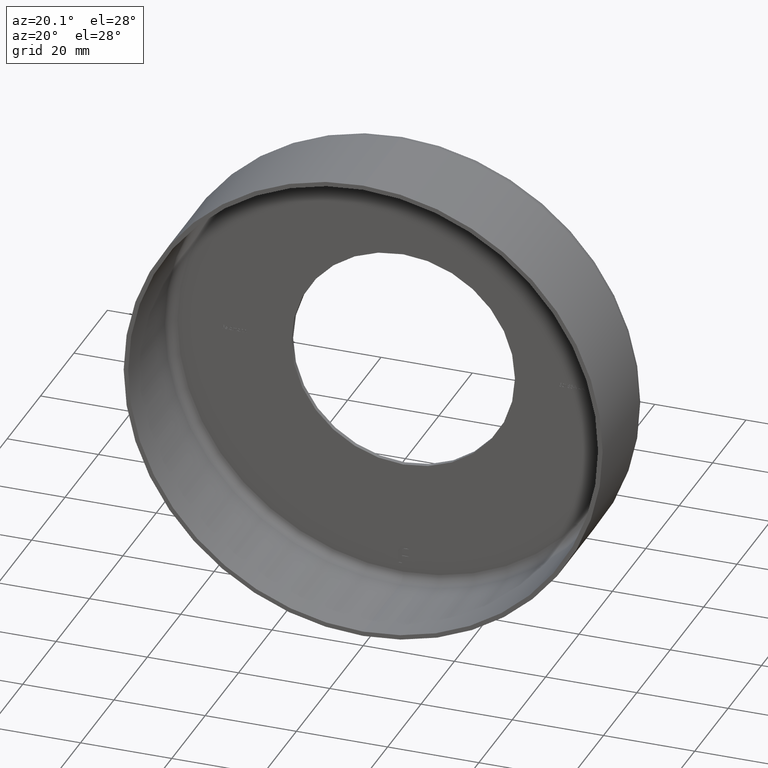
[diagram: clean part render]
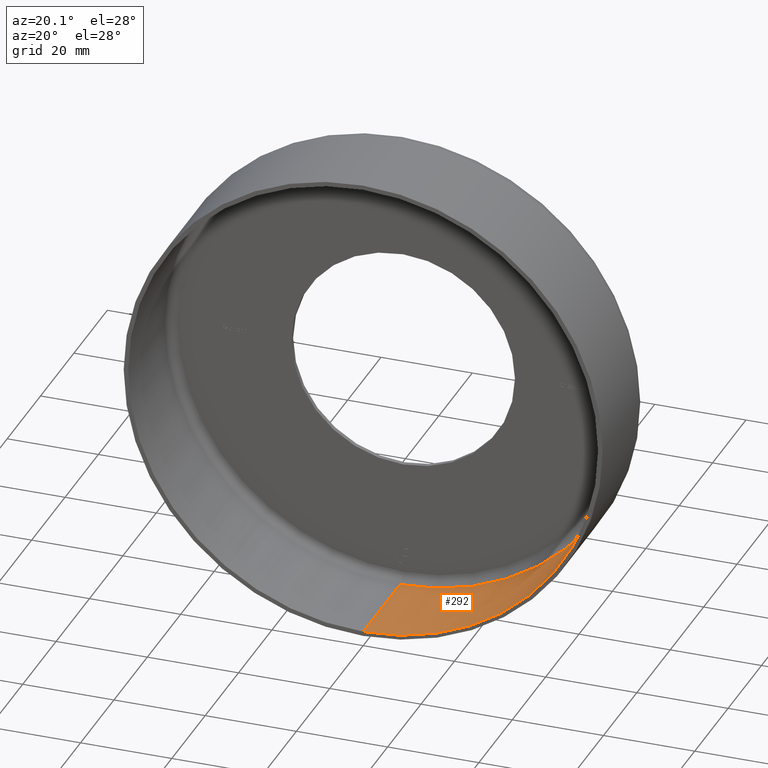
[diagram: same view with one face highlighted and labeled with its STEP entity id]
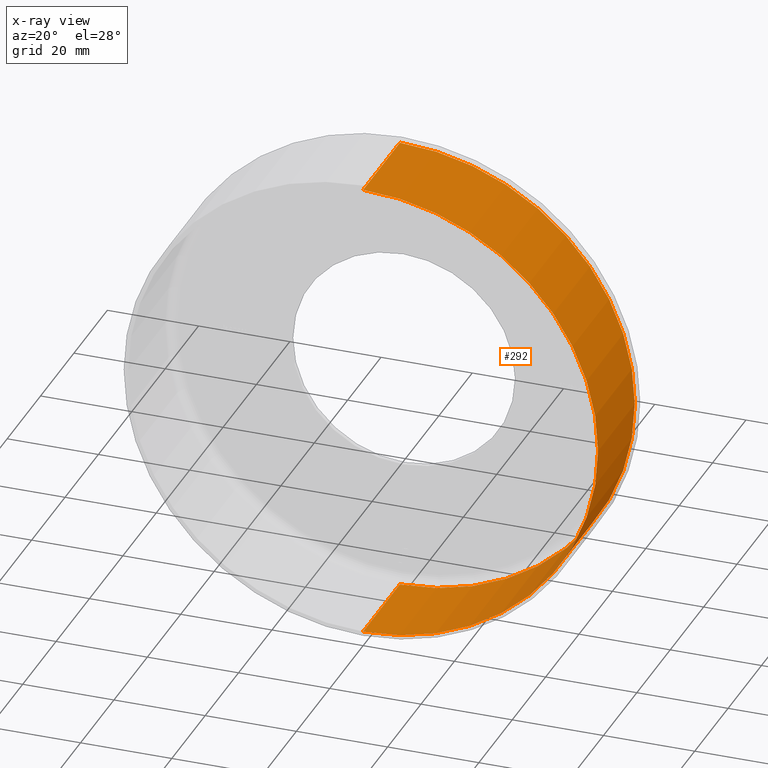
[diagram: x-ray of the same camera — body ghosted, the highlighted face saturated]
A machine part, auxiliary view. The second image highlights one B-rep face of the part: STEP entity #292.
The next image is the same camera in x-ray: the body ghosted, the highlighted face saturated — about 0% of this face is hidden behind the body in this view.
In plain terms, the highlighted cylindrical surface (partial cylindrical patch) has radius 51.5 mm, axis along (-0, -1, -0).
Its self-contained STEP definition (entity closure, byte-faithful):
#37 = CARTESIAN_POINT ( 'NONE',  ( 6.306931015608869596E-15, 0.000000000000000000, 51.50000000000000711 ) ) ;
#87 = DIRECTION ( 'NONE',  ( -0.000000000000000000, -1.000000000000000000, -0.000000000000000000 ) ) ;
#292 = ADVANCED_FACE ( 'NONE', ( #7107 ), #1666, .F. ) ;
#496 = DIRECTION ( 'NONE',  ( 0.000000000000000000, 0.000000000000000000, -1.000000000000000000 ) ) ;
#956 = LINE ( 'NONE', #12277, #6565 ) ;
#1062 = CIRCLE ( 'NONE', #11939, 51.50000000000000711 ) ;
#1528 = CARTESIAN_POINT ( 'NONE',  ( 0.000000000000000000, 22.00000000000000355, 0.000000000000000000 ) ) ;
#1666 = CYLINDRICAL_SURFACE ( 'NONE', #11134, 51.50000000000000711 ) ;
#2485 = VERTEX_POINT ( 'NONE', #9338 ) ;
#2600 = DIRECTION ( 'NONE',  ( -0.000000000000000000, -1.000000000000000000, -0.000000000000000000 ) ) ;
#2796 = DIRECTION ( 'NONE',  ( 0.000000000000000000, 0.000000000000000000, -1.000000000000000000 ) ) ;
#2851 = VERTEX_POINT ( 'NONE', #11965 ) ;
#4140 = VERTEX_POINT ( 'NONE', #13380 ) ;
#4300 = CARTESIAN_POINT ( 'NONE',  ( 0.000000000000000000, 0.000000000000000000, 0.000000000000000000 ) ) ;
#5235 = ORIENTED_EDGE ( 'NONE', *, *, #11637, .F. ) ;
#5422 = DIRECTION ( 'NONE',  ( 0.000000000000000000, 0.000000000000000000, -1.000000000000000000 ) ) ;
#5542 = CARTESIAN_POINT ( 'NONE',  ( 6.306931015608869596E-15, 22.00000000000000355, 51.50000000000000711 ) ) ;
#6565 = VECTOR ( 'NONE', #87, 1000.000000000000000 ) ;
#7017 = ORIENTED_EDGE ( 'NONE', *, *, #13564, .T. ) ;
#7107 = FACE_OUTER_BOUND ( 'NONE', #11644, .T. ) ;
#7288 = DIRECTION ( 'NONE',  ( -0.000000000000000000, -1.000000000000000000, -0.000000000000000000 ) ) ;
#8920 = DIRECTION ( 'NONE',  ( -0.000000000000000000, -1.000000000000000000, -0.000000000000000000 ) ) ;
#9338 = CARTESIAN_POINT ( 'NONE',  ( 0.000000000000000000, -1.224646799147353207E-16, -51.50000000000000711 ) ) ;
#9813 = ORIENTED_EDGE ( 'NONE', *, *, #13372, .T. ) ;
#10321 = AXIS2_PLACEMENT_3D ( 'NONE', #12818, #2600, #496 ) ;
#10700 = CIRCLE ( 'NONE', #10321, 51.50000000000000711 ) ;
#11134 = AXIS2_PLACEMENT_3D ( 'NONE', #4300, #8920, #5422 ) ;
#11637 = EDGE_CURVE ( 'NONE', #2851, #14282, #1062, .T. ) ;
#11644 = EDGE_LOOP ( 'NONE', ( #11815, #5235, #7017, #9813 ) ) ;
#11815 = ORIENTED_EDGE ( 'NONE', *, *, #11959, .F. ) ;
#11939 = AXIS2_PLACEMENT_3D ( 'NONE', #1528, #7288, #2796 ) ;
#11959 = EDGE_CURVE ( 'NONE', #14282, #4140, #14586, .T. ) ;
#11965 = CARTESIAN_POINT ( 'NONE',  ( 0.000000000000000000, 22.00000000000000355, -51.50000000000000711 ) ) ;
#12277 = CARTESIAN_POINT ( 'NONE',  ( 0.000000000000000000, 0.000000000000000000, -51.50000000000000711 ) ) ;
#12818 = CARTESIAN_POINT ( 'NONE',  ( 0.000000000000000000, -1.224646799147353207E-16, 0.000000000000000000 ) ) ;
#13001 = VECTOR ( 'NONE', #13459, 1000.000000000000000 ) ;
#13372 = EDGE_CURVE ( 'NONE', #2485, #4140, #10700, .T. ) ;
#13380 = CARTESIAN_POINT ( 'NONE',  ( 6.306931015608869596E-15, -1.224646799147353207E-16, 51.50000000000000711 ) ) ;
#13459 = DIRECTION ( 'NONE',  ( -0.000000000000000000, -1.000000000000000000, -0.000000000000000000 ) ) ;
#13564 = EDGE_CURVE ( 'NONE', #2851, #2485, #956, .T. ) ;
#14282 = VERTEX_POINT ( 'NONE', #5542 ) ;
#14586 = LINE ( 'NONE', #37, #13001 ) ;